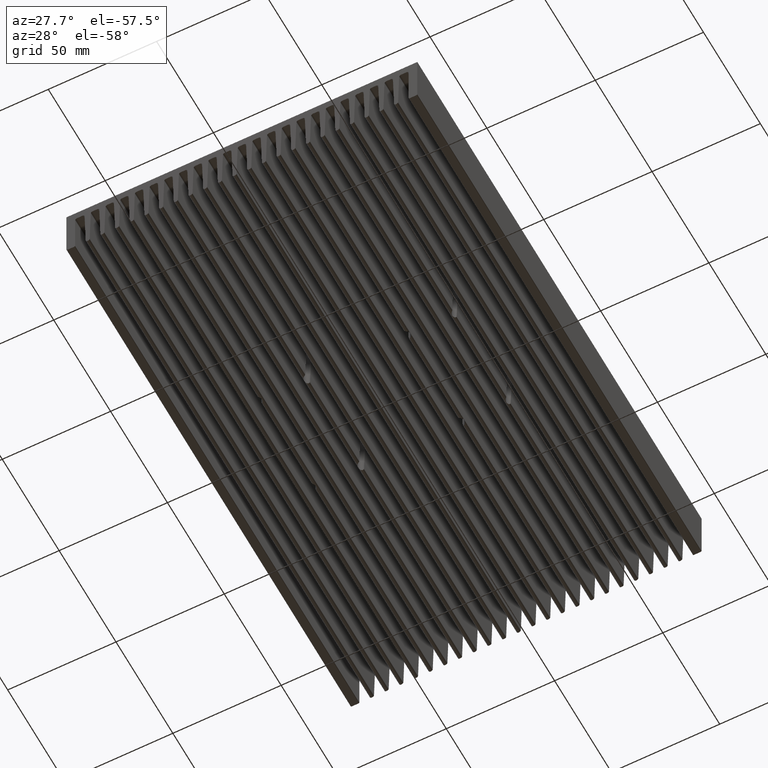
[diagram: clean part render]
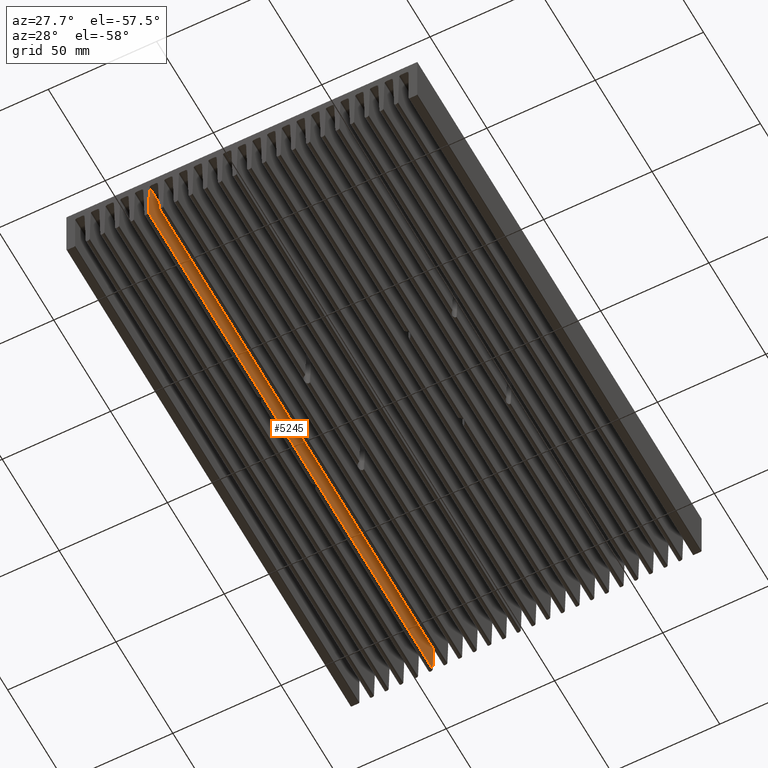
[diagram: same view with one face highlighted and labeled with its STEP entity id]
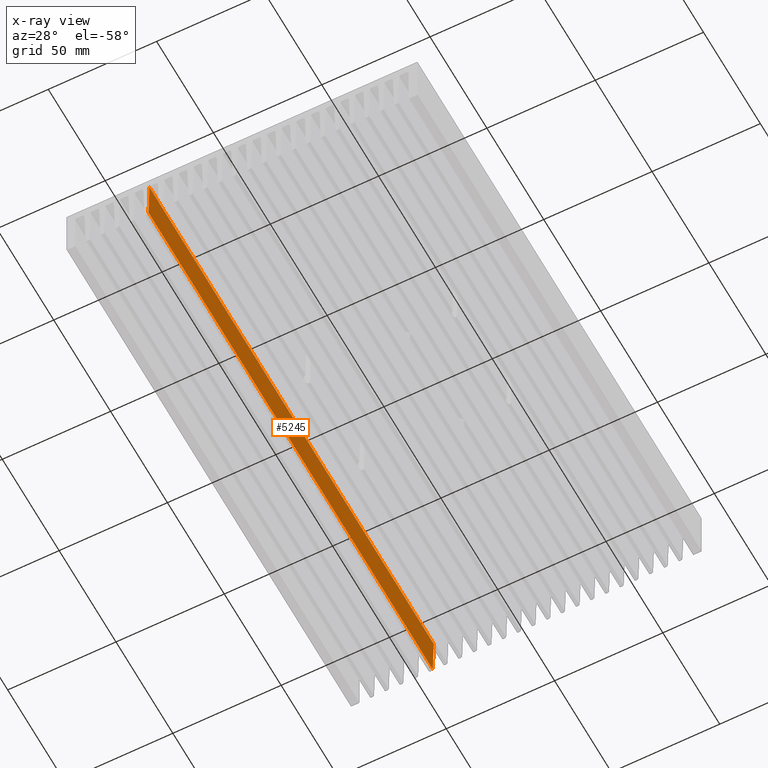
[diagram: x-ray of the same camera — body ghosted, the highlighted face saturated]
A machine part, auxiliary view. The second image highlights one B-rep face of the part: STEP entity #5245.
The next image is the same camera in x-ray: the body ghosted, the highlighted face saturated — about 0% of this face is hidden behind the body in this view.
In plain terms, the highlighted planar face has unit normal (0.9997, 0, -0.0252).
Its self-contained STEP definition (entity closure, byte-faithful):
#5187=CARTESIAN_POINT('',(-42.643953138821274,-125.0,-5.175451448333943));
#5188=VERTEX_POINT('',#5187);
#5196=CARTESIAN_POINT('',(-42.643953138821274,125.0,-5.175451448333888));
#5197=VERTEX_POINT('',#5196);
#5198=CARTESIAN_POINT('',(-42.643953138821274,125.0,-5.175451448333888));
#5199=DIRECTION('',(0.0,-1.0,0.0));
#5200=VECTOR('',#5199,250.0);
#5201=LINE('',#5198,#5200);
#5202=EDGE_CURVE('',#5197,#5188,#5201,.T.);
#5215=CARTESIAN_POINT('',(-42.643953138821274,125.0,-5.175451448333888));
#5216=DIRECTION('',(0.99968248880085,5.550242E-018,-0.025197650385284));
#5217=DIRECTION('',(-0.025197650385284,0.0,-0.99968248880085));
#5218=AXIS2_PLACEMENT_3D('',#5215,#5216,#5217);
#5219=PLANE('',#5218);
#5220=CARTESIAN_POINT('',(-43.120286293048451,-125.0,-24.073321124083179));
#5221=VERTEX_POINT('',#5220);
#5222=CARTESIAN_POINT('',(-42.643953138821274,-125.0,-5.175451448333943));
#5223=DIRECTION('',(-0.025197650385284,0.0,-0.99968248880085));
#5224=VECTOR('',#5223,18.903871866774239);
#5225=LINE('',#5222,#5224);
#5226=EDGE_CURVE('',#5188,#5221,#5225,.T.);
#5227=ORIENTED_EDGE('',*,*,#5226,.T.);
#5228=CARTESIAN_POINT('',(-43.120286293048451,125.0,-24.073321124083122));
#5229=VERTEX_POINT('',#5228);
#5230=CARTESIAN_POINT('',(-43.120286293048451,125.0,-24.073321124083122));
#5231=DIRECTION('',(0.0,-1.0,0.0));
#5232=VECTOR('',#5231,250.0);
#5233=LINE('',#5230,#5232);
#5234=EDGE_CURVE('',#5229,#5221,#5233,.T.);
#5235=ORIENTED_EDGE('',*,*,#5234,.F.);
#5236=CARTESIAN_POINT('',(-42.643953138821274,125.0,-5.175451448333888));
#5237=DIRECTION('',(-0.025197650385284,0.0,-0.99968248880085));
#5238=VECTOR('',#5237,18.903871866774239);
#5239=LINE('',#5236,#5238);
#5240=EDGE_CURVE('',#5197,#5229,#5239,.T.);
#5241=ORIENTED_EDGE('',*,*,#5240,.F.);
#5242=ORIENTED_EDGE('',*,*,#5202,.T.);
#5243=EDGE_LOOP('',(#5227,#5235,#5241,#5242));
#5244=FACE_OUTER_BOUND('',#5243,.T.);
#5245=ADVANCED_FACE('',(#5244),#5219,.T.);